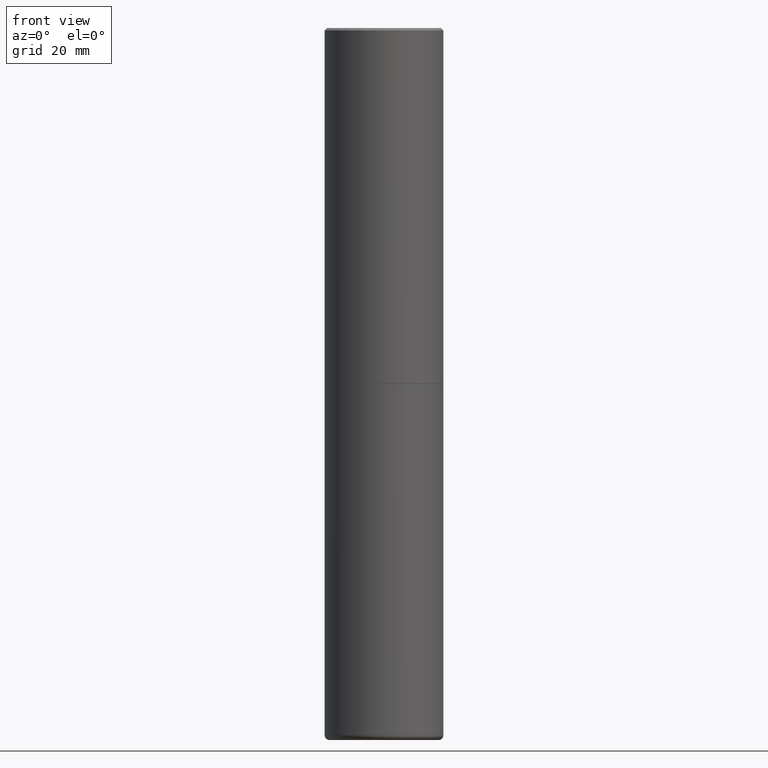
[diagram: clean part render]
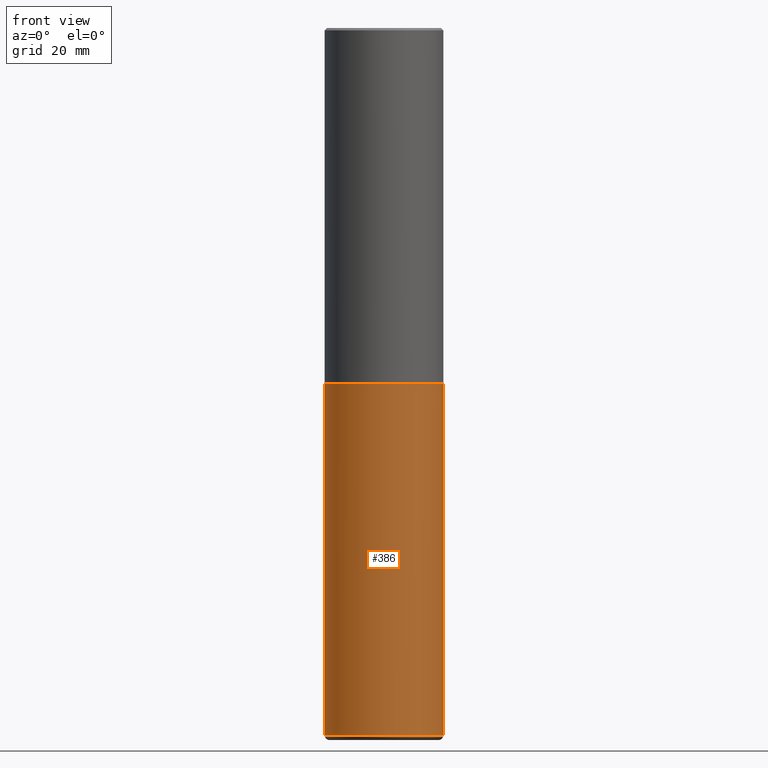
[diagram: same view with one face highlighted and labeled with its STEP entity id]
A machine part, front view. The second image highlights one B-rep face of the part: STEP entity #386.
In plain terms, the highlighted cylindrical surface (partial cylindrical patch) has radius 12.5006 mm, axis along (-0, 0, 1).
Its self-contained STEP definition (entity closure, byte-faithful):
#6 = LINE ( 'NONE', #265, #293 ) ;
#32 = DIRECTION ( 'NONE',  ( 1.000000000000000000, -6.982962677686265922E-15, 0.000000000000000000 ) ) ;
#35 = DIRECTION ( 'NONE',  ( -2.445468806185136597E-29, 3.491481338843145583E-15, 1.000000000000000000 ) ) ;
#42 = DIRECTION ( 'NONE',  ( -2.445468806185136877E-29, 3.491481338843145188E-15, 1.000000000000000000 ) ) ;
#54 = CYLINDRICAL_SURFACE ( 'NONE', #267, 0.4921499999999999764 ) ;
#60 = EDGE_CURVE ( 'NONE', #91, #400, #6, .T. ) ;
#66 = VERTEX_POINT ( 'NONE', #235 ) ;
#74 = CIRCLE ( 'NONE', #94, 0.4921500000000000319 ) ;
#91 = VERTEX_POINT ( 'NONE', #102 ) ;
#94 = AXIS2_PLACEMENT_3D ( 'NONE', #212, #184, #272 ) ;
#99 = CARTESIAN_POINT ( 'NONE',  ( 7.220735744022852519E-29, -1.030929694920215502E-14, -2.952700000000000102 ) ) ;
#102 = CARTESIAN_POINT ( 'NONE',  ( 0.4921500000000002539, -2.391804376361107326E-14, -5.866100000000000314 ) ) ;
#129 = ORIENTED_EDGE ( 'NONE', *, *, #274, .F. ) ;
#130 = CARTESIAN_POINT ( 'NONE',  ( 0.4921499999999999764, -1.374596203102545079E-14, -2.952700000000000102 ) ) ;
#131 = ORIENTED_EDGE ( 'NONE', *, *, #145, .T. ) ;
#132 = DIRECTION ( 'NONE',  ( -2.445468806185136597E-29, 3.491481338843145583E-15, 1.000000000000000000 ) ) ;
#145 = EDGE_CURVE ( 'NONE', #66, #91, #74, .T. ) ;
#147 = LINE ( 'NONE', #209, #299 ) ;
#154 = ORIENTED_EDGE ( 'NONE', *, *, #408, .F. ) ;
#184 = DIRECTION ( 'NONE',  ( -2.445468806185136597E-29, 3.491481338843145583E-15, 1.000000000000000000 ) ) ;
#194 = CIRCLE ( 'NONE', #369, 0.4921499999999999764 ) ;
#198 = FACE_OUTER_BOUND ( 'NONE', #287, .T. ) ;
#209 = CARTESIAN_POINT ( 'NONE',  ( -0.4921499999999999764, 3.496936074043332897E-15, -2.420853904668951509E-29 ) ) ;
#212 = CARTESIAN_POINT ( 'NONE',  ( 1.434536456396262923E-28, -2.048137868178777591E-14, -5.866100000000000314 ) ) ;
#235 = CARTESIAN_POINT ( 'NONE',  ( -0.4921500000000002539, -1.698444260774444222E-14, -5.866100000000000314 ) ) ;
#261 = CARTESIAN_POINT ( 'NONE',  ( 0.000000000000000000, 0.000000000000000000, 0.000000000000000000 ) ) ;
#265 = CARTESIAN_POINT ( 'NONE',  ( 0.4921499999999999764, -3.436665081823295777E-15, 2.399810400207969603E-29 ) ) ;
#267 = AXIS2_PLACEMENT_3D ( 'NONE', #261, #132, #418 ) ;
#271 = VERTEX_POINT ( 'NONE', #347 ) ;
#272 = DIRECTION ( 'NONE',  ( 1.000000000000000000, -6.982962677686265133E-15, 0.000000000000000000 ) ) ;
#274 = EDGE_CURVE ( 'NONE', #66, #271, #147, .T. ) ;
#287 = EDGE_LOOP ( 'NONE', ( #129, #131, #325, #154 ) ) ;
#293 = VECTOR ( 'NONE', #42, 39.37007874015748143 ) ;
#299 = VECTOR ( 'NONE', #340, 39.37007874015748143 ) ;
#325 = ORIENTED_EDGE ( 'NONE', *, *, #60, .T. ) ;
#340 = DIRECTION ( 'NONE',  ( -2.445468806185136877E-29, 3.491481338843145188E-15, 1.000000000000000000 ) ) ;
#347 = CARTESIAN_POINT ( 'NONE',  ( -0.4921499999999999764, -1.189840174145163414E-14, -2.952700000000000102 ) ) ;
#369 = AXIS2_PLACEMENT_3D ( 'NONE', #99, #35, #32 ) ;
#386 = ADVANCED_FACE ( 'NONE', ( #198 ), #54, .T. ) ;
#400 = VERTEX_POINT ( 'NONE', #130 ) ;
#408 = EDGE_CURVE ( 'NONE', #271, #400, #194, .T. ) ;
#418 = DIRECTION ( 'NONE',  ( 1.000000000000000000, -6.982962677686265922E-15, 4.876176775795935793E-29 ) ) ;